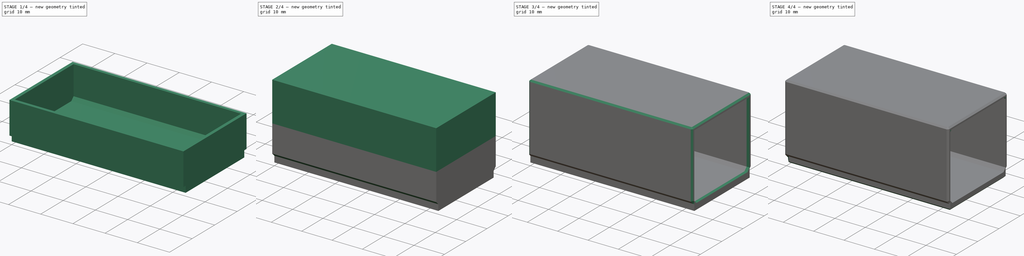
[diagram: build sequence overview — one tinted view per stage of 4, left to right]
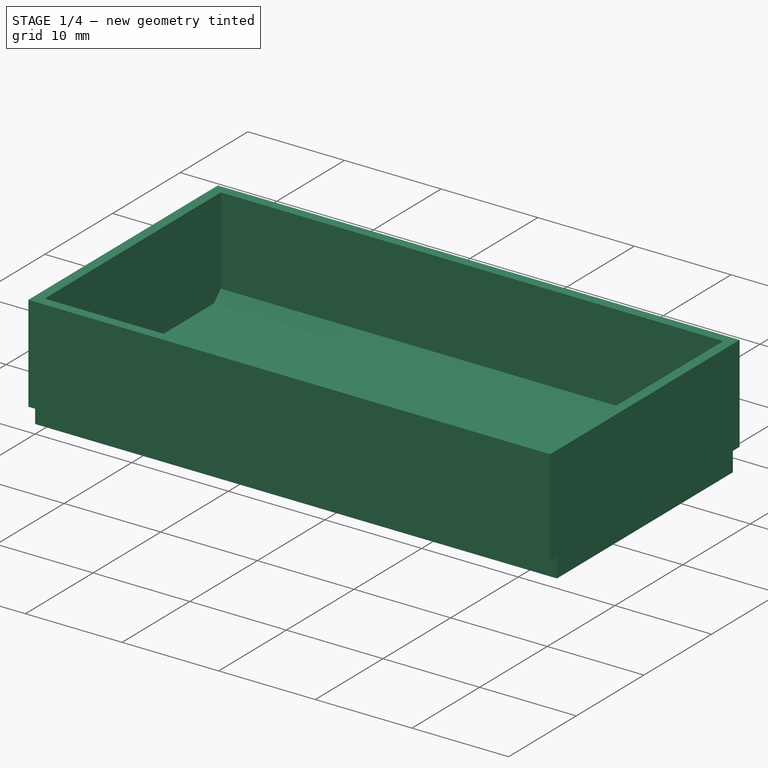
[diagram: stage 1 of 4 — iso view after this stage's code; geometry added in this stage tinted green]
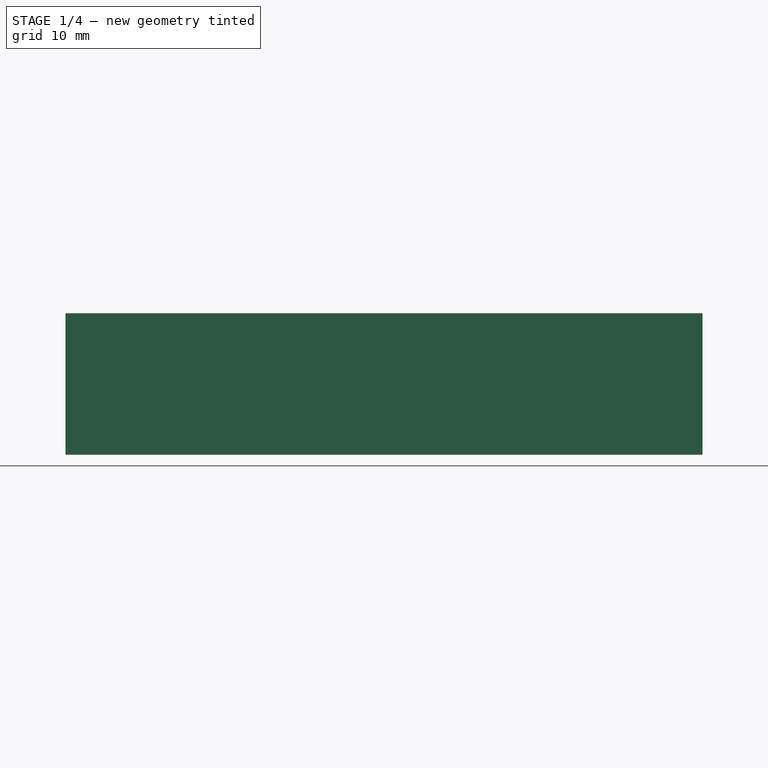
[diagram: stage 1 of 4 — front view after this stage's code; geometry added in this stage tinted green]
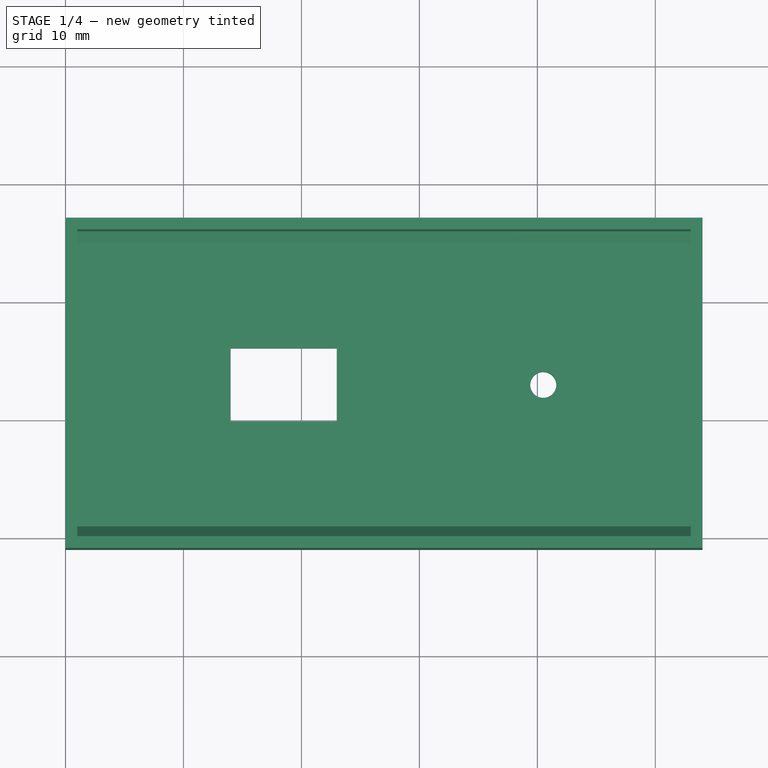
[diagram: stage 1 of 4 — top view after this stage's code; geometry added in this stage tinted green]
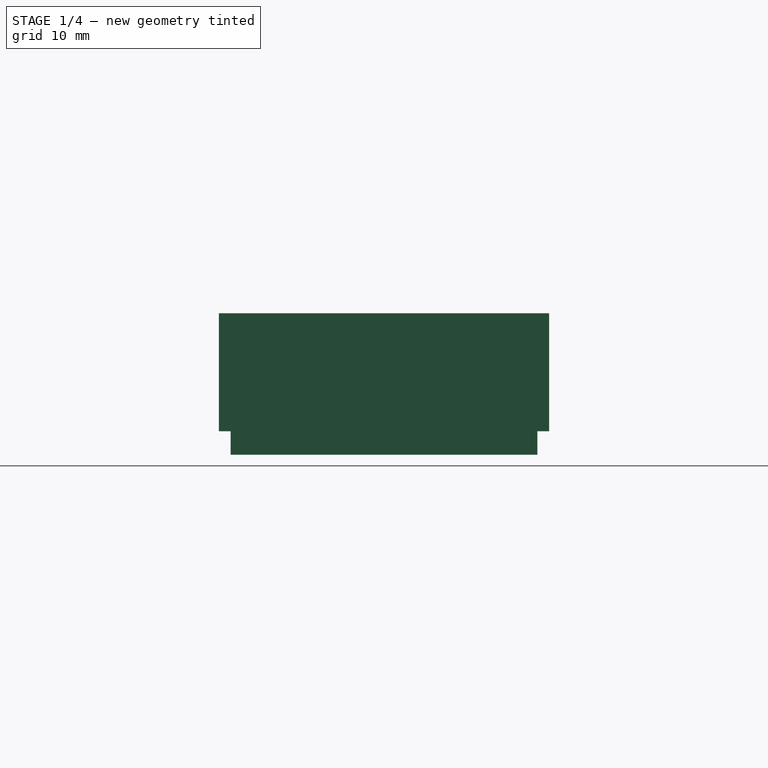
[diagram: stage 1 of 4 — right view after this stage's code; geometry added in this stage tinted green]
FCSTD DOCUMENT  (FreeCAD 0.20RUnknown)
Label: MatchboxLadeflaecheZu
License: All rights reserved
LicenseURL: http://en.wikipedia.org/wiki/All_rights_reserved
objects: Sketcher::SketchObject×7, PartDesign::Pad×5, PartDesign::Chamfer×5, PartDesign::Pocket×2, PartDesign::Body×1
note: 32 computed .brp shape members not serialized (recipe doc carries the construction recipe); baked Part::Feature solids carry a one-line shape summary decoded from their .brp

FEATURE [Sketcher::SketchObject] Sketch
  FullyConstrained = true
  MapMode = 5
  Support = -> [XY_Plane]
  sketch-geometry (13):
    g0: LineSegment StartX=0 StartY=0 StartZ=0 EndX=54 EndY=0 EndZ=0
    g1: LineSegment StartX=54 StartY=0 StartZ=0 EndX=54 EndY=26 EndZ=0
    g2: LineSegment StartX=54 StartY=26 StartZ=0 EndX=0 EndY=26 EndZ=0
    g3: LineSegment StartX=0 StartY=26 StartZ=0 EndX=0 EndY=0 EndZ=0
    g4: LineSegment StartX=14 StartY=16.1 StartZ=0 EndX=23 EndY=16.1 EndZ=0
    g5: LineSegment StartX=23 StartY=16.1 StartZ=0 EndX=23 EndY=9.9 EndZ=0
    g6: LineSegment StartX=23 StartY=9.9 StartZ=0 EndX=14 EndY=9.9 EndZ=0
    g7: LineSegment StartX=14 StartY=9.9 StartZ=0 EndX=14 EndY=16.1 EndZ=0
    g8: Circle CenterX=40.5 CenterY=13 CenterZ=0 NormalX=0 NormalY=0 NormalZ=1 AngleXU=0 Radius=1.1
    g9: LineSegment StartX=40.5 StartY=13 StartZ=0 EndX=40.5 EndY=26 EndZ=0
    g10: LineSegment StartX=40.5 StartY=13 StartZ=0 EndX=40.5 EndY=0 EndZ=0
    g11: LineSegment StartX=23 StartY=16.1 StartZ=0 EndX=23 EndY=26 EndZ=0
    g12: LineSegment StartX=23 StartY=9.9 StartZ=0 EndX=23 EndY=0 EndZ=0
  constraints (38):
    c: Coincident(g0,g1)
    c: Coincident(g1,g2)
    c: Coincident(g2,g3)
    c: Coincident(g3,g0)
    c: Horizontal(g0)
    c: Horizontal(g2)
    c: Vertical(g1)
    c: Vertical(g3)
    c: Coincident(g0,g-1)
    c: Coincident(g4,g5)
    c: Coincident(g5,g6)
    c: Coincident(g6,g7)
    c: Coincident(g7,g4)
    c: Horizontal(g4)
    c: Horizontal(g6)
    c: Vertical(g5)
    c: Vertical(g7)
    c: DistanceX(g2,g2) = 54
    c: DistanceY(g1,g1) = 26
    c: DistanceX(g2,g4) = 14
    c: DistanceX(g4,g4) = 9
    c: DistanceY(g5,g5) = 6.2
    c: DistanceX(g2,g8) = 40.5
    c: Diameter(g8) = 2.2
    c: Coincident(g9,g8)
    c: PointOnObject(g9,g2)
    c: Vertical(g9)
    c: Coincident(g10,g8)
    c: PointOnObject(g10,g0)
    c: Vertical(g10)
    c: Equal(g9,g10)
    c: Coincident(g11,g4)
    c: PointOnObject(g11,g2)
    c: Vertical(g11)
    c: Coincident(g12,g5)
    c: PointOnObject(g12,g0)
    c: Vertical(g12)
    c: Equal(g12,g11)
FEATURE [PartDesign::Pad] Pad
  Direction = (0,0,1)
  Length = 2
  Length2 = 10
  Profile = -> Sketch
  ReferenceAxis = -> Sketch [N_Axis]
  Type = 0
FEATURE [Sketcher::SketchObject] Sketch001
  ExternalGeometry = -> [Pad]
  FullyConstrained = true
  MapMode = 5
  Placement = pos=(0,0,2) rot=(0,0,1;0rad)
  Support = -> [Pad]
  sketch-geometry (14):
    g0: LineSegment StartX=0 StartY=27 StartZ=0 EndX=54 EndY=27 EndZ=0
    g1: LineSegment StartX=54 StartY=27 StartZ=0 EndX=54 EndY=-1 EndZ=0
    g2: LineSegment StartX=54 StartY=-1 StartZ=0 EndX=0 EndY=-1 EndZ=0
    g3: LineSegment StartX=0 StartY=-1 StartZ=0 EndX=0 EndY=27 EndZ=0
    g4: LineSegment StartX=54 StartY=26 StartZ=0 EndX=54 EndY=27 EndZ=0
    g5: LineSegment StartX=54 StartY=0 StartZ=0 EndX=54 EndY=-1 EndZ=0
    g6: LineSegment StartX=1 StartY=26 StartZ=0 EndX=53 EndY=26 EndZ=0
    g7: LineSegment StartX=53 StartY=26 StartZ=0 EndX=53 EndY=0 EndZ=0
    g8: LineSegment StartX=53 StartY=9e-16 StartZ=0 EndX=1 EndY=9e-16 EndZ=0
    g9: LineSegment StartX=1 StartY=9e-16 StartZ=0 EndX=1 EndY=26 EndZ=0
    g10: LineSegment StartX=0 StartY=26 StartZ=0 EndX=1 EndY=26 EndZ=0
    g11: LineSegment StartX=1 StartY=26 StartZ=0 EndX=1 EndY=27 EndZ=0
    g12: LineSegment StartX=53 StartY=-1 StartZ=0 EndX=53 EndY=9e-16 EndZ=0
    g13: LineSegment StartX=53 StartY=9e-16 StartZ=0 EndX=54 EndY=9e-16 EndZ=0
  constraints (40):
    c: Coincident(g0,g1)
    c: Coincident(g1,g2)
    c: Coincident(g2,g3)
    c: Coincident(g3,g0)
    c: Horizontal(g0)
    c: Horizontal(g2)
    c: Vertical(g1)
    c: Vertical(g3)
    c: PointOnObject(g0,g-2)
    c: Coincident(g4,g-3)
    c: Coincident(g4,g0)
    c: Coincident(g5,g-4)
    c: Coincident(g5,g1)
    c: Equal(g4,g5)
    c: Vertical(g4)
    c: Coincident(g6,g7)
    c: Coincident(g7,g8)
    c: Coincident(g8,g9)
    c: Coincident(g9,g6)
    c: Horizontal(g6)
    c: Horizontal(g8)
    c: Vertical(g7)
    c: Vertical(g9)
    c: PointOnObject(g10,g3)
    c: Coincident(g10,g6)
    c: Coincident(g10,g11)
    c: PointOnObject(g11,g0)
    c: Vertical(g11)
    c: PointOnObject(g12,g2)
    c: Coincident(g12,g7)
    c: Coincident(g12,g13)
    c: PointOnObject(g13,g1)
    c: Horizontal(g13)
    c: Vertical(g12)
    c: Equal(g12,g13)
    c: Equal(g11,g10)
    c: Horizontal(g10)
    c: Equal(g11,g12)
    c: DistanceX(g13,g13) = 1
    c: DistanceY(g1,g0) = 28
FEATURE [PartDesign::Pad] Pad001
  BaseFeature = -> Pad
  Direction = (0,0,1)
  Length = 10
  Length2 = 10
  Profile = -> Sketch001
  ReferenceAxis = -> Sketch001 [N_Axis]
  Type = 0
FEATURE [Sketcher::SketchObject] Sketch002
  ExternalGeometry = -> [Pad001]
  FullyConstrained = true
  MapMode = 5
  Placement = pos=(1,0,0) rot=(0.57735,0.57735,0.57735;2.0944rad)
  Support = -> [Pad001]
  sketch-geometry (6):
    g0: LineSegment StartX=9e-16 StartY=2 StartZ=0 EndX=9e-16 EndY=3 EndZ=0
    g1: LineSegment StartX=9e-16 StartY=3 StartZ=0 EndX=1 EndY=2 EndZ=0
    g2: LineSegment StartX=1 StartY=2 StartZ=0 EndX=9e-16 EndY=2 EndZ=0
    g3: LineSegment StartX=26 StartY=2 StartZ=0 EndX=26 EndY=3 EndZ=0
    g4: LineSegment StartX=26 StartY=3 StartZ=0 EndX=25 EndY=2 EndZ=0
    g5: LineSegment StartX=25 StartY=2 StartZ=0 EndX=26 EndY=2 EndZ=0
  constraints (16):
    c: Coincident(g5,g3)
    c: Coincident(g-3,g3)
    c: Horizontal(g5)
    c: Coincident(g5,g4)
    c: Coincident(g3,g4)
    c: Vertical(g3)
    c: Equal(g3,g5)
    c: Coincident(g2,g0)
    c: Coincident(g-3,g0)
    c: Coincident(g2,g1)
    c: Coincident(g0,g1)
    c: Vertical(g0)
    c: Horizontal(g2)
    c: Equal(g0,g2)
    c: Equal(g2,g5)
    c: DistanceY(g0,g0) = 1
FEATURE [PartDesign::Pad] Pad002
  BaseFeature = -> Pad001
  Direction = (1,0,0)
  Length = 10
  Length2 = 10
  Profile = -> Sketch002
  ReferenceAxis = -> Sketch002 [N_Axis]
  Type = 2
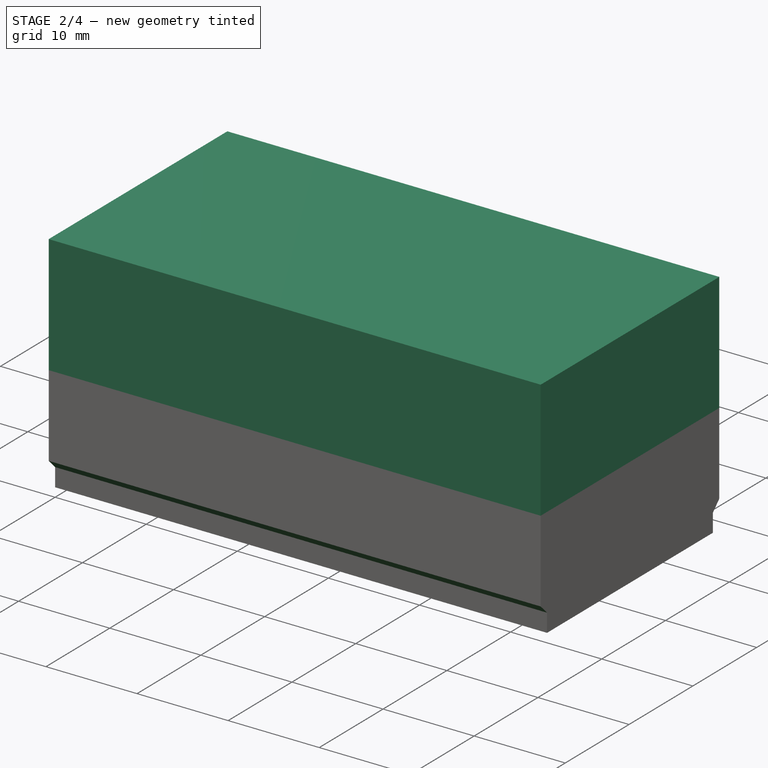
[diagram: stage 2 of 4 — iso view after this stage's code; geometry added in this stage tinted green]
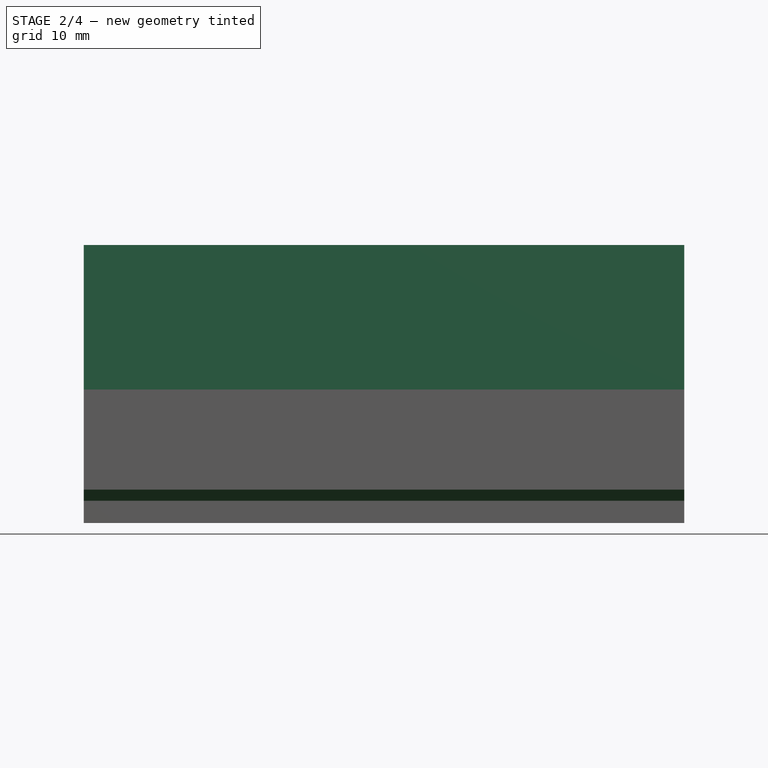
[diagram: stage 2 of 4 — front view after this stage's code; geometry added in this stage tinted green]
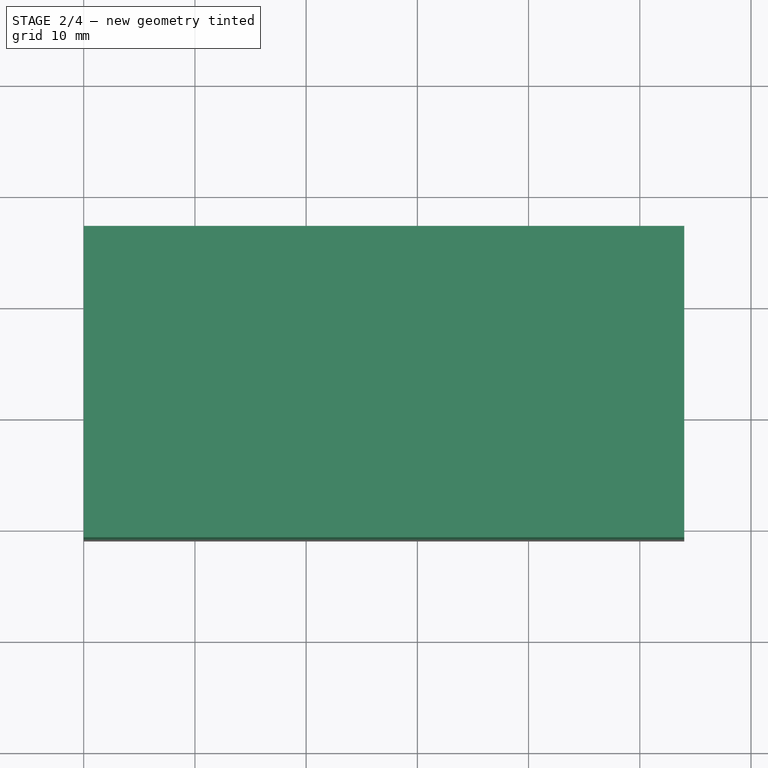
[diagram: stage 2 of 4 — top view after this stage's code; geometry added in this stage tinted green]
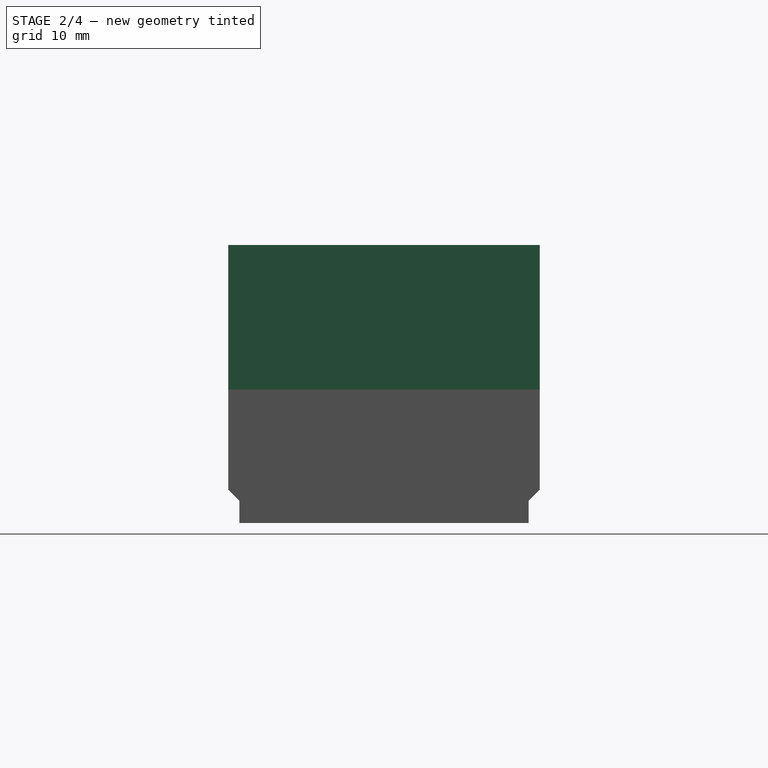
[diagram: stage 2 of 4 — right view after this stage's code; geometry added in this stage tinted green]
FEATURE [Sketcher::SketchObject] Sketch003
  ExternalGeometry = -> [Pad002]
  FullyConstrained = true
  MapMode = 5
  Placement = pos=(54,0,0) rot=(0.57735,0.57735,0.57735;2.0944rad)
  Support = -> [Pad002]
  sketch-geometry (6):
    g0: LineSegment StartX=-1 StartY=2 StartZ=0 EndX=-1 EndY=3 EndZ=0
    g1: LineSegment StartX=-1 StartY=3 StartZ=0 EndX=0 EndY=2 EndZ=0
    g2: LineSegment StartX=0 StartY=2 StartZ=0 EndX=-1 EndY=2 EndZ=0
    g3: LineSegment StartX=27 StartY=2 StartZ=0 EndX=27 EndY=3 EndZ=0
    g4: LineSegment StartX=27 StartY=3 StartZ=0 EndX=26 EndY=2 EndZ=0
    g5: LineSegment StartX=26 StartY=2 StartZ=0 EndX=27 EndY=2 EndZ=0
  constraints (14):
    c: Coincident(g-3,g0)
    c: Vertical(g0)
    c: Coincident(g0,g1)
    c: Coincident(g1,g-3)
    c: Coincident(g1,g2)
    c: Coincident(g2,g0)
    c: Coincident(g-4,g3)
    c: Vertical(g3)
    c: Coincident(g3,g4)
    c: Coincident(g4,g-4)
    c: Coincident(g4,g5)
    c: Coincident(g5,g3)
    c: Equal(g5,g3)
    c: Equal(g0,g2)
FEATURE [PartDesign::Pocket] Pocket
  BaseFeature = -> Pad002
  Direction = (-1,0,0)
  Length = 5
  Length2 = 5
  Profile = -> Sketch003
  ReferenceAxis = -> Sketch003 [N_Axis]
  Type = 1
FEATURE [Sketcher::SketchObject] Sketch004
  ExternalGeometry = -> [Pocket]
  FullyConstrained = true
  MapMode = 5
  Placement = pos=(0,0,12) rot=(0,0,1;0rad)
  Support = -> [Pocket]
  sketch-geometry (8):
    g0: LineSegment StartX=0 StartY=27 StartZ=0 EndX=54 EndY=27 EndZ=0
    g1: LineSegment StartX=54 StartY=27 StartZ=0 EndX=54 EndY=-1 EndZ=0
    g2: LineSegment StartX=54 StartY=-1 StartZ=0 EndX=0 EndY=-1 EndZ=0
    g3: LineSegment StartX=0 StartY=-1 StartZ=0 EndX=0 EndY=27 EndZ=0
    g4: LineSegment StartX=1 StartY=26 StartZ=0 EndX=53 EndY=26 EndZ=0
    g5: LineSegment StartX=53 StartY=26 StartZ=0 EndX=53 EndY=0 EndZ=0
    g6: LineSegment StartX=53 StartY=0 StartZ=0 EndX=1 EndY=0 EndZ=0
    g7: LineSegment StartX=1 StartY=0 StartZ=0 EndX=1 EndY=26 EndZ=0
  constraints (20):
    c: Coincident(g0,g1)
    c: Coincident(g1,g2)
    c: Coincident(g2,g3)
    c: Coincident(g3,g0)
    c: Horizontal(g0)
    c: Horizontal(g2)
    c: Vertical(g1)
    c: Vertical(g3)
    c: Coincident(g0,g-3)
    c: Coincident(g1,g-5)
    c: Coincident(g4,g5)
    c: Coincident(g5,g6)
    c: Coincident(g6,g7)
    c: Coincident(g7,g4)
    c: Horizontal(g4)
    c: Horizontal(g6)
    c: Vertical(g5)
    c: Vertical(g7)
    c: Coincident(g4,g-4)
    c: Coincident(g5,g-6)
FEATURE [PartDesign::Pad] Pad003
  BaseFeature = -> Pocket
  Direction = (0,0,1)
  Length = 12
  Length2 = 10
  Profile = -> Sketch004
  ReferenceAxis = -> Sketch004 [N_Axis]
  Type = 0
FEATURE [Sketcher::SketchObject] Sketch005
  ExternalGeometry = -> [Pad003]
  FullyConstrained = true
  MapMode = 5
  Placement = pos=(0,0,24) rot=(0,0,1;0rad)
  Support = -> [Pad003]
  sketch-geometry (4):
    g0: LineSegment StartX=0 StartY=27 StartZ=0 EndX=54 EndY=27 EndZ=0
    g1: LineSegment StartX=54 StartY=27 StartZ=0 EndX=54 EndY=-1 EndZ=0
    g2: LineSegment StartX=54 StartY=-1 StartZ=0 EndX=0 EndY=-1 EndZ=0
    g3: LineSegment StartX=0 StartY=-1 StartZ=0 EndX=0 EndY=27 EndZ=0
  constraints (10):
    c: Coincident(g0,g1)
    c: Coincident(g1,g2)
    c: Coincident(g2,g3)
    c: Coincident(g3,g0)
    c: Horizontal(g0)
    c: Horizontal(g2)
    c: Vertical(g1)
    c: Vertical(g3)
    c: Coincident(g0,g-3)
    c: Coincident(g1,g-4)
FEATURE [PartDesign::Pad] Pad004
  BaseFeature = -> Pad003
  Direction = (0,0,1)
  Length = 1
  Length2 = 10
  Profile = -> Sketch005
  ReferenceAxis = -> Sketch005 [N_Axis]
  Type = 0
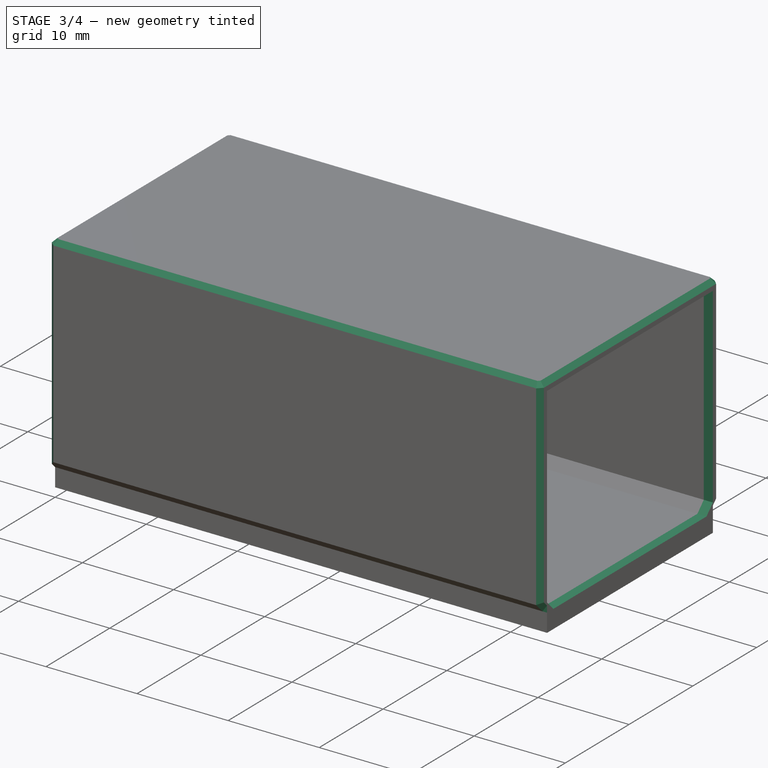
[diagram: stage 3 of 4 — iso view after this stage's code; geometry added in this stage tinted green]
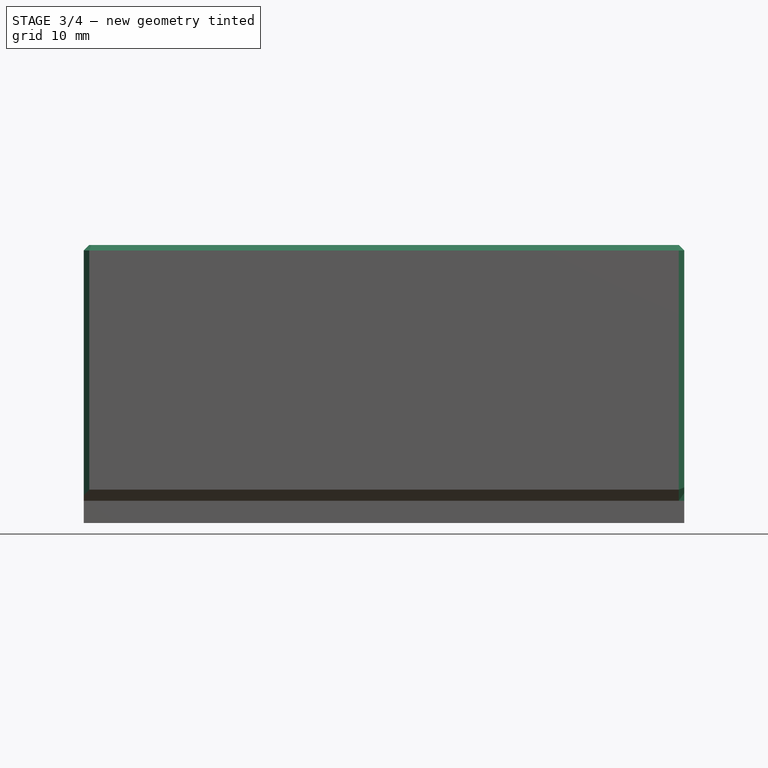
[diagram: stage 3 of 4 — front view after this stage's code; geometry added in this stage tinted green]
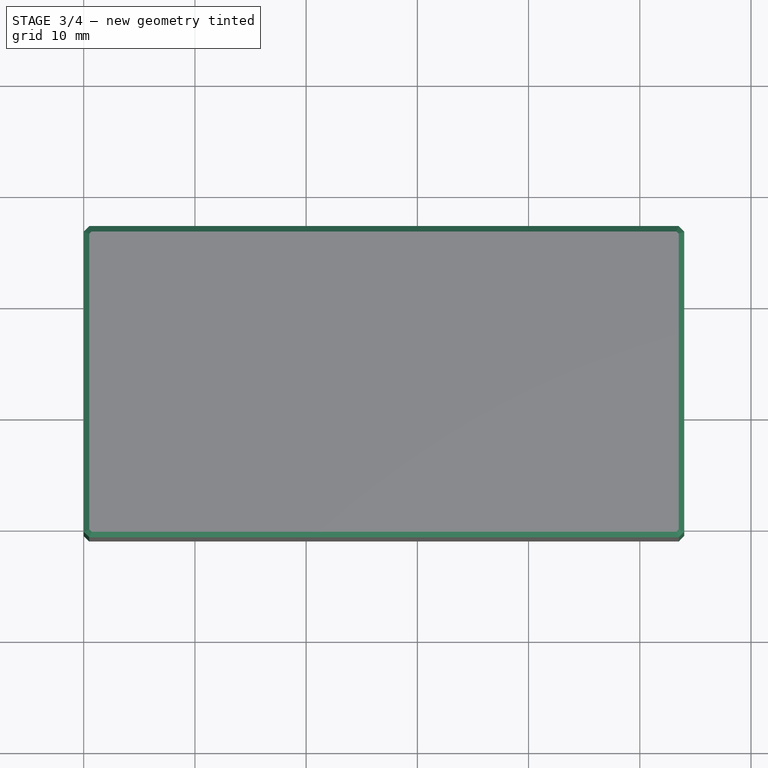
[diagram: stage 3 of 4 — top view after this stage's code; geometry added in this stage tinted green]
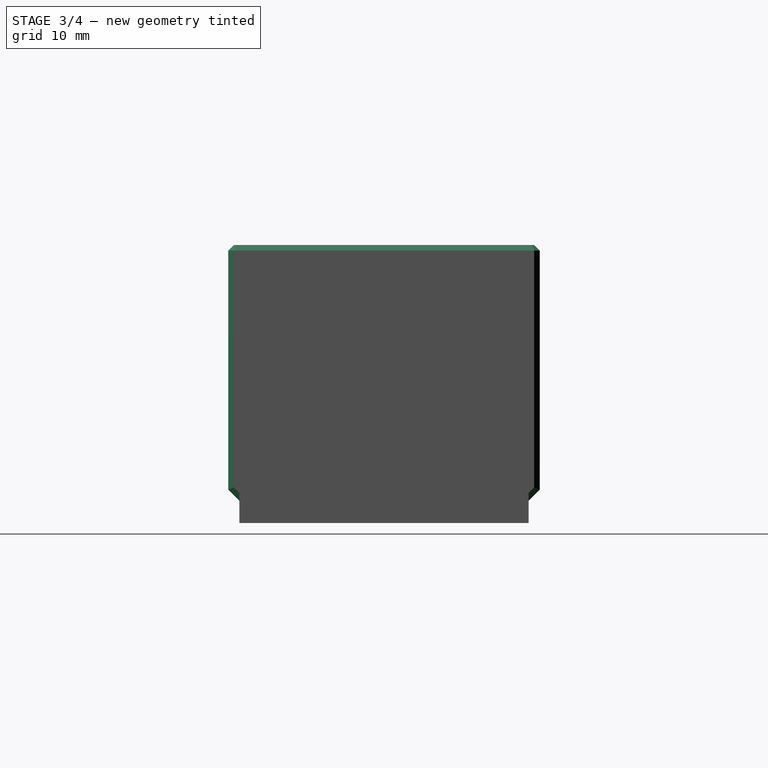
[diagram: stage 3 of 4 — right view after this stage's code; geometry added in this stage tinted green]
FEATURE [Sketcher::SketchObject] Sketch006
  ExternalGeometry = -> [Pad004]
  FullyConstrained = true
  MapMode = 5
  Placement = pos=(53,0,0) rot=(0.57735,-0.57735,-0.57735;2.0944rad)
  Support = -> [Pad004]
  sketch-geometry (6):
    g0: LineSegment StartX=-26 StartY=24 StartZ=0 EndX=0 EndY=24 EndZ=0
    g1: LineSegment StartX=0 StartY=24 StartZ=0 EndX=1.8e-15 EndY=3 EndZ=0
    g2: LineSegment StartX=1.8e-15 StartY=3 StartZ=0 EndX=-1 EndY=2 EndZ=0
    g3: LineSegment StartX=-1 StartY=2 StartZ=0 EndX=-25 EndY=2 EndZ=0
    g4: LineSegment StartX=-25 StartY=2 StartZ=0 EndX=-26 EndY=3 EndZ=0
    g5: LineSegment StartX=-26 StartY=3 StartZ=0 EndX=-26 EndY=24 EndZ=0
  constraints (12):
    c: Coincident(g-3,g0)
    c: Coincident(g0,g-3)
    c: Coincident(g0,g1)
    c: Coincident(g1,g-6)
    c: Coincident(g1,g2)
    c: Coincident(g2,g-6)
    c: Coincident(g2,g3)
    c: Coincident(g3,g-5)
    c: Coincident(g3,g4)
    c: Coincident(g4,g-5)
    c: Coincident(g4,g5)
    c: Coincident(g5,g0)
FEATURE [PartDesign::Pocket] Pocket001
  BaseFeature = -> Pad004
  Direction = (1,0,0)
  Length = 5
  Length2 = 5
  Profile = -> Sketch006
  ReferenceAxis = -> Sketch006 [N_Axis]
  Type = 0
FEATURE [PartDesign::Chamfer] Chamfer
  Angle = 45
  Base = -> Pocket001 [Edge84,Edge59,Edge31,Edge83,Edge77,Edge42,Edge21,Edge38,Edge28,Edge57,Edge81,Edge30,Edge56,Edge80]
  BaseFeature = -> Pocket001
  ChamferType = 0
  FlipDirection = false
  Size = 0.5
  Size2 = 1
  SupportTransform = false
  UseAllEdges = false
FEATURE [PartDesign::Chamfer] Chamfer001
  Angle = 45
  Base = -> Chamfer [Face47]
  BaseFeature = -> Chamfer
  ChamferType = 0
  FlipDirection = false
  Size = 0.5
  Size2 = 1
  SupportTransform = false
  UseAllEdges = false
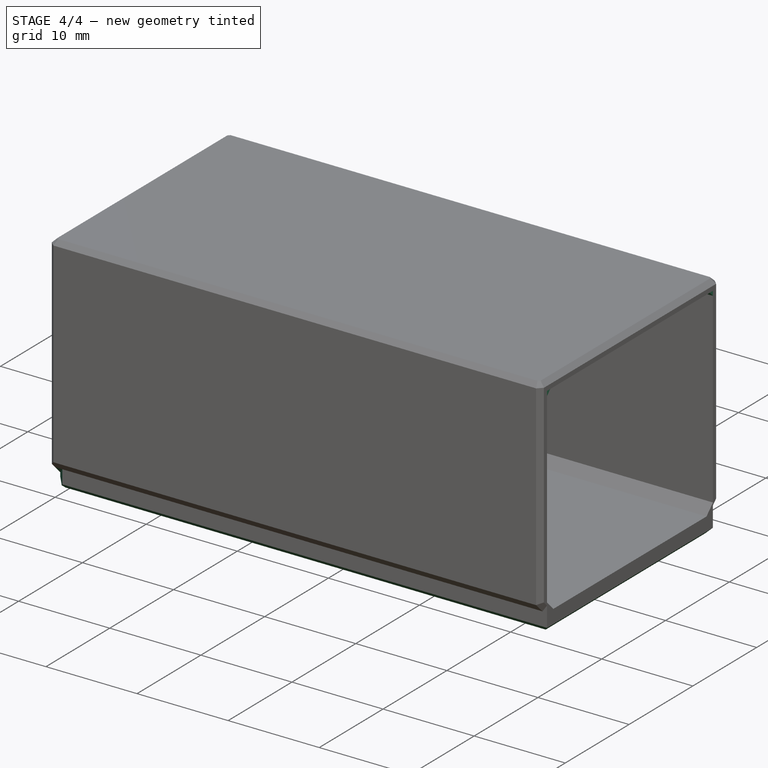
[diagram: stage 4 of 4 — iso view after this stage's code; geometry added in this stage tinted green]
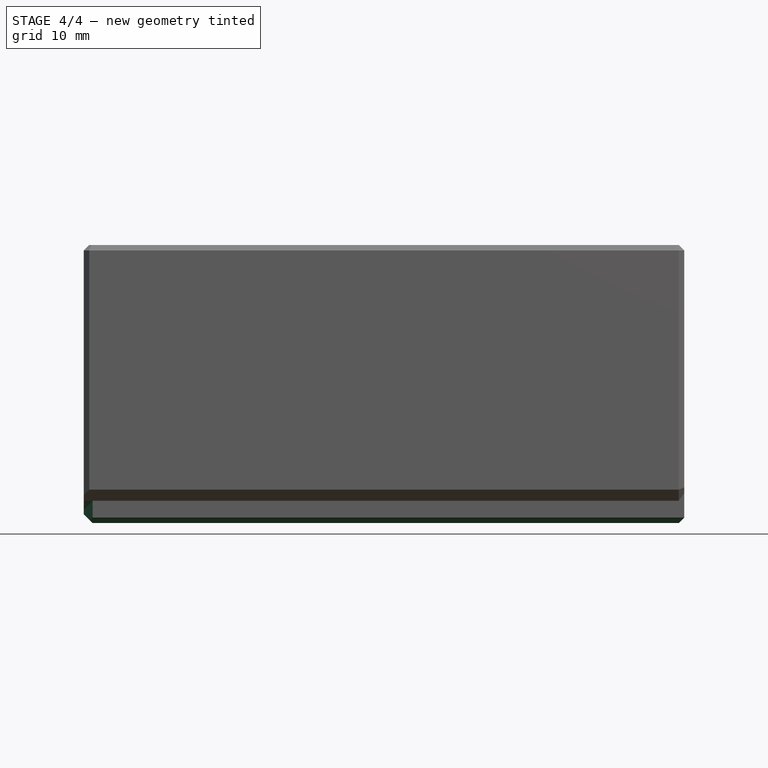
[diagram: stage 4 of 4 — front view after this stage's code; geometry added in this stage tinted green]
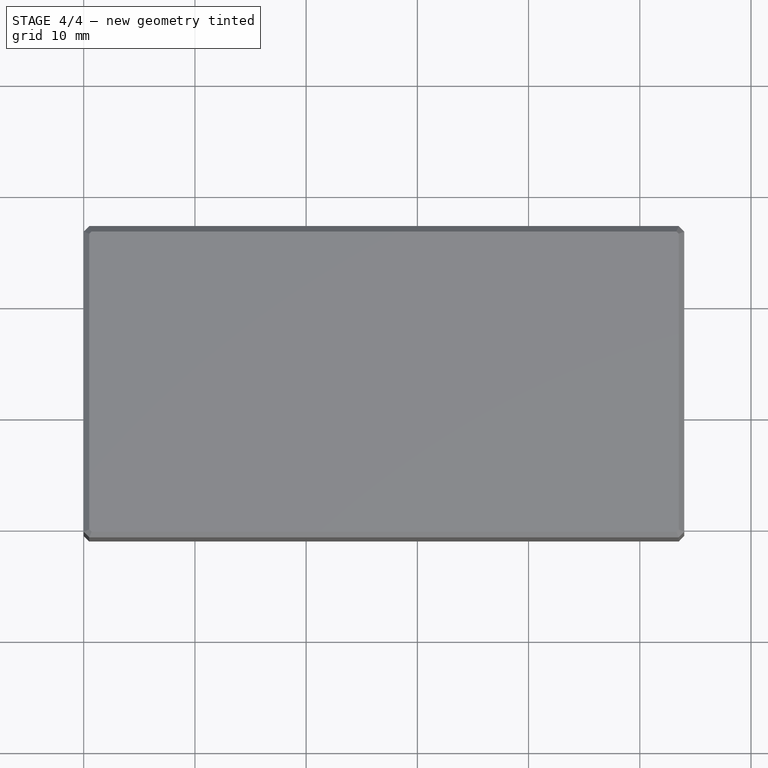
[diagram: stage 4 of 4 — top view after this stage's code; geometry added in this stage tinted green]
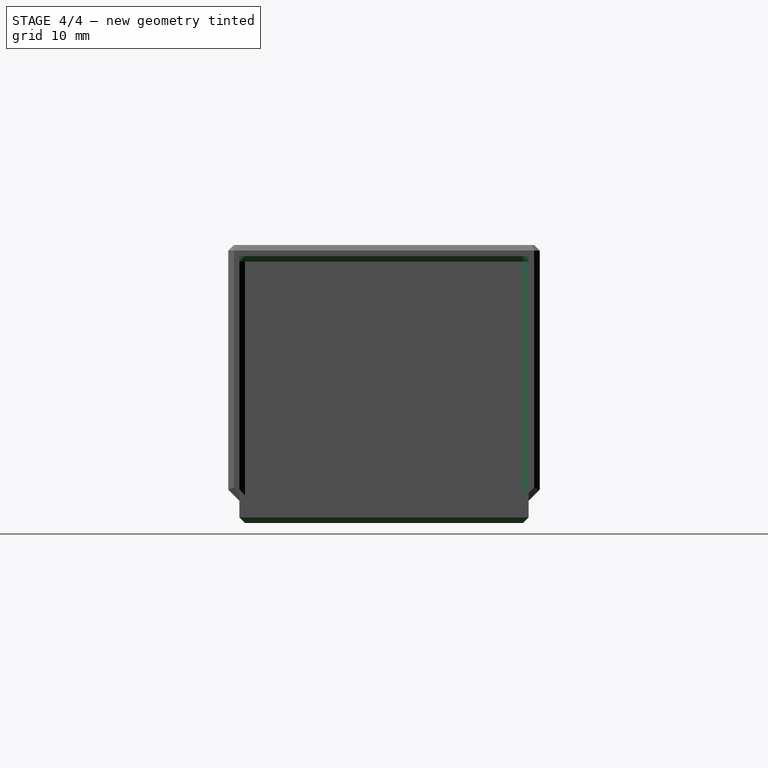
[diagram: stage 4 of 4 — right view after this stage's code; geometry added in this stage tinted green]
FEATURE [PartDesign::Chamfer] Chamfer002
  Angle = 45
  Base = -> Chamfer001 [Edge54,Edge53,Edge55,Edge94,Edge93,Edge105,Edge101]
  BaseFeature = -> Chamfer001
  ChamferType = 0
  FlipDirection = false
  Size = 0.5
  Size2 = 1
  SupportTransform = false
  UseAllEdges = false
FEATURE [PartDesign::Chamfer] Chamfer003
  Angle = 45
  Base = -> Chamfer002 [Edge113,Edge140,Edge93]
  BaseFeature = -> Chamfer002
  ChamferType = 0
  FlipDirection = false
  Size = 0.8
  Size2 = 1
  SupportTransform = false
  UseAllEdges = false
FEATURE [PartDesign::Chamfer] Chamfer004
  Angle = 45
  Base = -> Chamfer003 [Edge17,Edge18,Edge3]
  BaseFeature = -> Chamfer003
  ChamferType = 0
  FlipDirection = false
  Size = 0.5
  Size2 = 1
  SupportTransform = false
  UseAllEdges = false
FEATURE [PartDesign::Body] Body
  Group = -> [Sketch,Pad,Sketch001,Pad001,Sketch002,Pad002,Sketch003,Pocket,Sketch004,Pad003,Sketch005,Pad004,Sketch006,Pocket001,Chamfer,Chamfer001,Chamfer002,Chamfer003,Chamfer004]
  Origin = -> Origin
  Tip = -> Chamfer004
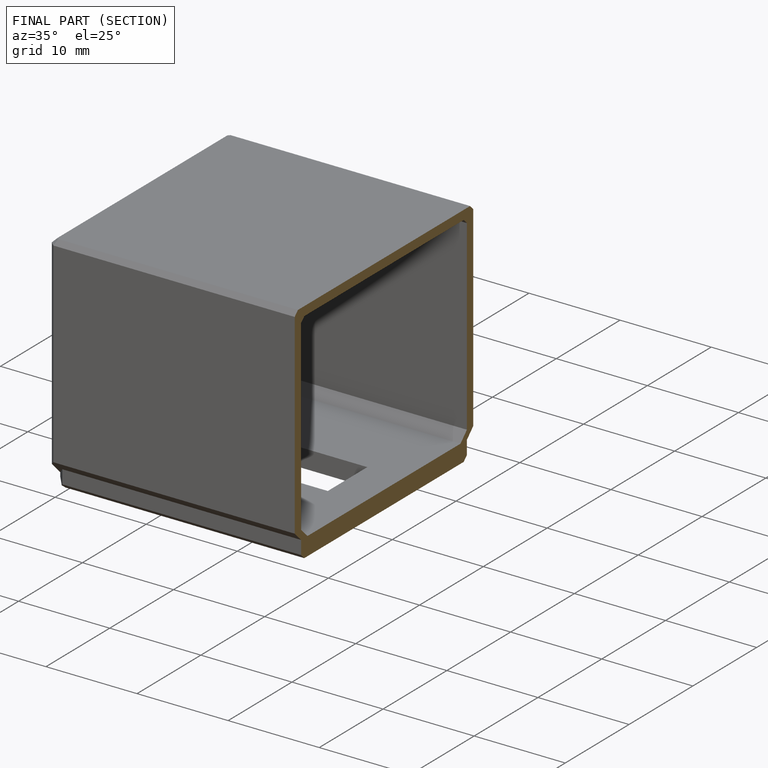
[diagram: finished part — half-section view (interior)]
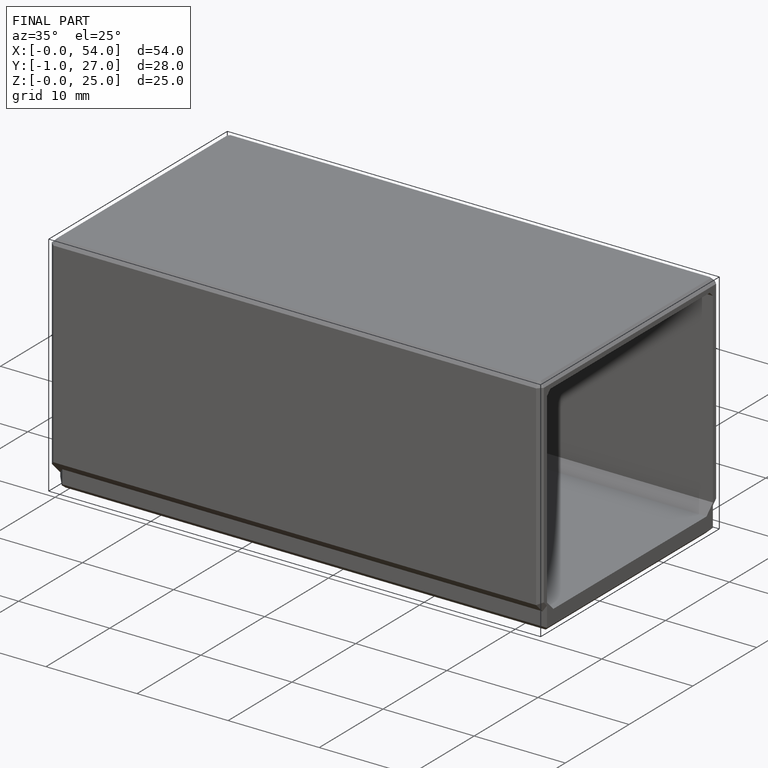
[diagram: finished part — iso view with bounding-box wireframe]
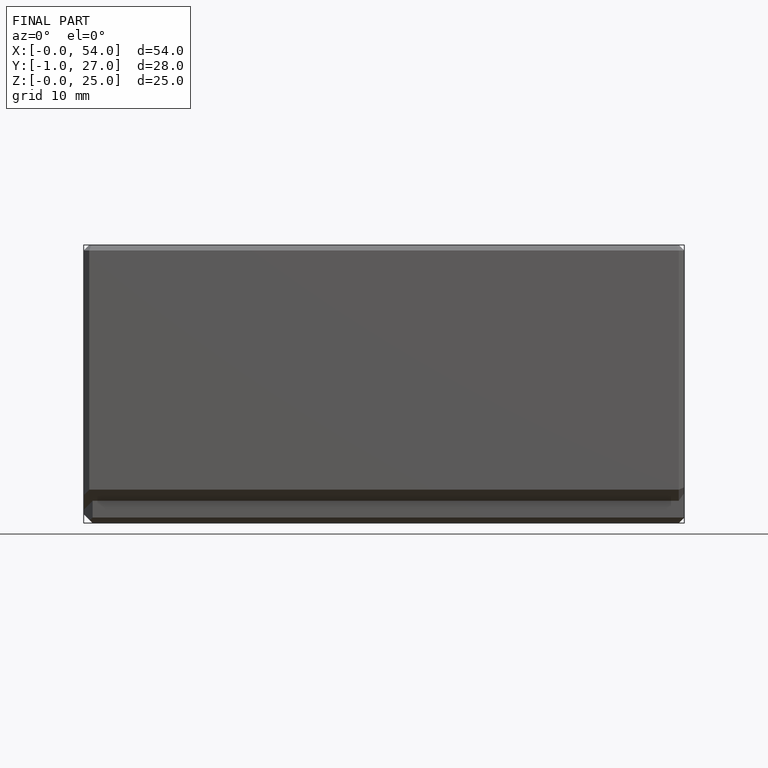
[diagram: finished part — front view with bounding-box wireframe]
